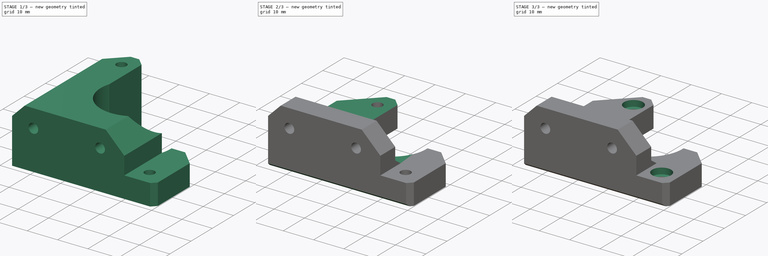
[diagram: build sequence overview — one tinted view per stage of 3, left to right]
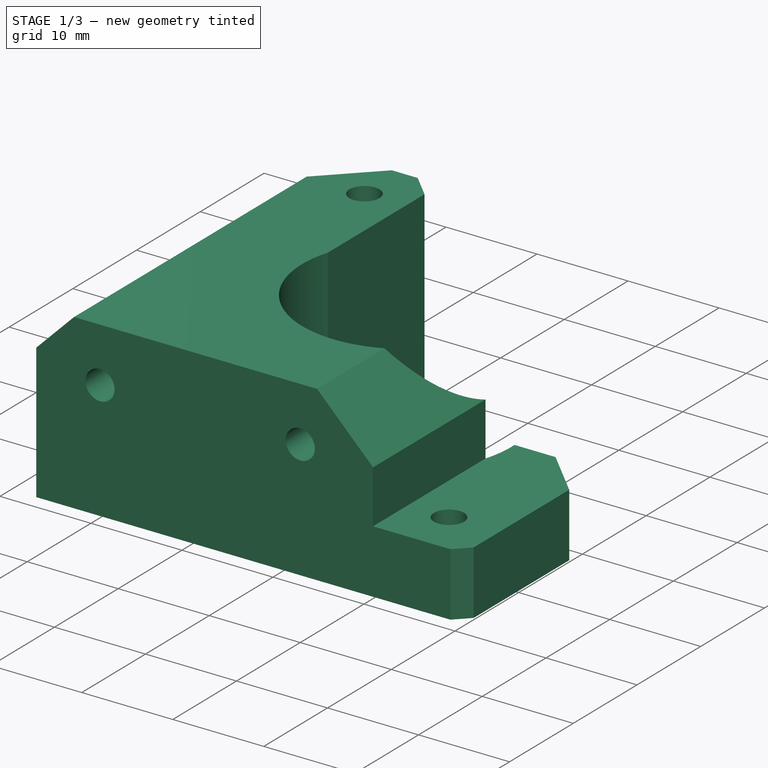
[diagram: stage 1 of 3 — iso view after this stage's code; geometry added in this stage tinted green]
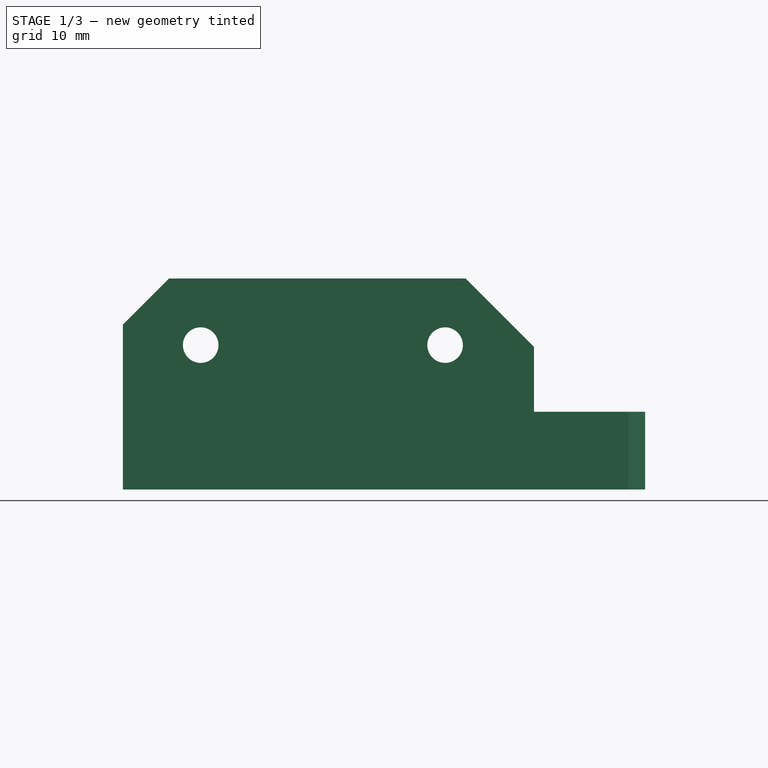
[diagram: stage 1 of 3 — front view after this stage's code; geometry added in this stage tinted green]
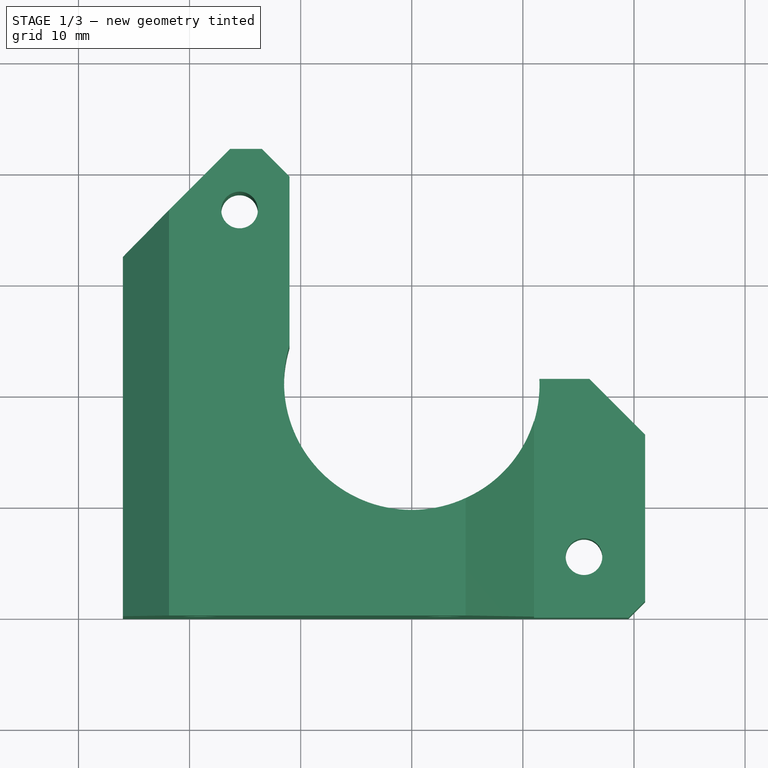
[diagram: stage 1 of 3 — top view after this stage's code; geometry added in this stage tinted green]
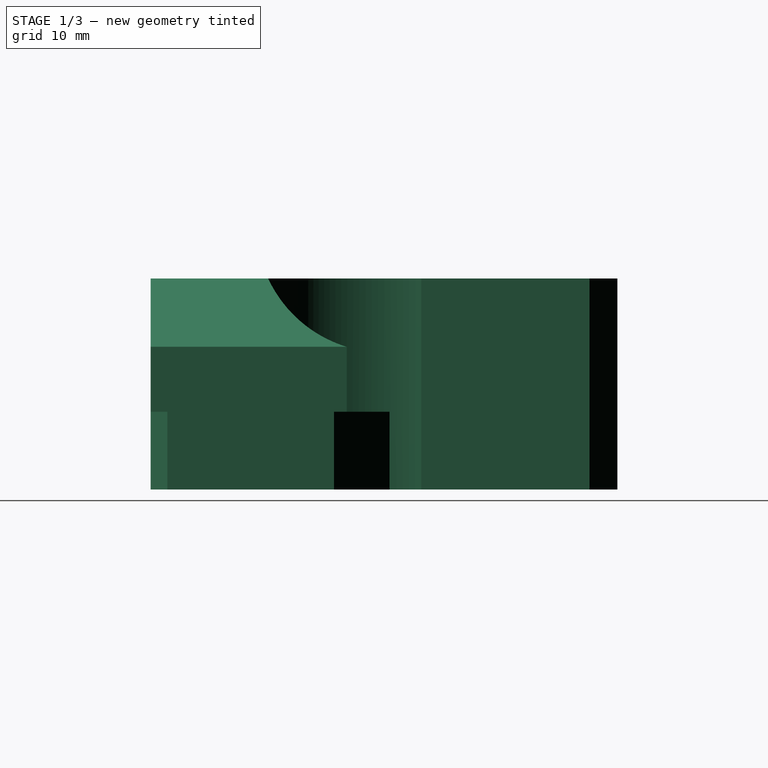
[diagram: stage 1 of 3 — right view after this stage's code; geometry added in this stage tinted green]
FCSTD DOCUMENT  (FreeCAD 0.22R38231 (Git))
Label: _Y-Motor-Holder
License: Creative Commons Attribution 4.0
LicenseURL: https://creativecommons.org/licenses/by/4.0/
objects: Sketcher::SketchObject×6, PartDesign::Pocket×5, PartDesign::Pad×1, PartDesign::Chamfer×1, PartDesign::Body×1
note: 28 computed .brp shape members not serialized (recipe doc carries the construction recipe); baked Part::Feature solids carry a one-line shape summary decoded from their .brp

FEATURE [Sketcher::SketchObject] Sketch
  AttachmentSupport = -> [XZ_Plane]
  FullyConstrained = true
  MapMode = 5
  Placement = pos=(0,0,0) rot=(1,0,0;1.5708rad)
  sketch-geometry (10):
    g0: LineSegment StartX=-26 StartY=-7 StartZ=0 EndX=21 EndY=-7 EndZ=0
    g1: LineSegment StartX=21 StartY=-7 StartZ=0 EndX=21 EndY=0 EndZ=0
    g2: LineSegment StartX=21 StartY=0 StartZ=0 EndX=11 EndY=0 EndZ=0
    g3: LineSegment StartX=11 StartY=0 StartZ=0 EndX=11 EndY=5.85 EndZ=0
    g4: LineSegment StartX=11 StartY=5.85 StartZ=0 EndX=4.85 EndY=12 EndZ=0
    g5: LineSegment StartX=4.85 StartY=12 StartZ=0 EndX=-21.85 EndY=12 EndZ=0
    g6: LineSegment StartX=-21.85 StartY=12 StartZ=0 EndX=-26 EndY=7.85 EndZ=0
    g7: LineSegment StartX=-26 StartY=7.85 StartZ=0 EndX=-26 EndY=-7 EndZ=0
    g8: Circle CenterX=-19 CenterY=6 CenterZ=0 NormalX=0 NormalY=0 NormalZ=1 AngleXU=0 Radius=1.6
    g9: Circle CenterX=3 CenterY=6 CenterZ=0 NormalX=0 NormalY=0 NormalZ=1 AngleXU=0 Radius=1.6
  constraints (30):
    c: Horizontal(g0)
    c: Coincident(g0,g1)
    c: PointOnObject(g1,g-1)
    c: Vertical(g1)
    c: Coincident(g1,g2)
    c: PointOnObject(g2,g-1)
    c: Coincident(g2,g3)
    c: Vertical(g3)
    c: Coincident(g3,g4)
    c: Coincident(g4,g5)
    c: Horizontal(g5)
    c: Coincident(g5,g6)
    c: Coincident(g6,g7)
    c: Coincident(g7,g0)
    c: Vertical(g7)
    c: DistanceY(g0,g-1) = 7
    c: DistanceX(g0,g-1) = 26
    c: DistanceX(g0,g0) = 47
    c: DistanceY(g0,g5) = 19
    c: Angle(g7,g6) = 2.35619
    c: DistanceY(g6,g5) = 4.15
    c: DistanceX(g6,g3) = 37
    c: Perpendicular(g4,g6)
    c: DistanceY(g3,g4) = 6.15
    c: Horizontal(g9,g8)
    c: DistanceX(g8,g9) = 22
    c: DistanceX(g-1,g9) = 3
    c: Equal(g8,g9)
    c: Diameter(g8) = 3.2
    c: DistanceY(g-1,g8) = 6
FEATURE [PartDesign::Pad] Pad
  Direction = (0,-1,2e-16)
  Length = 42
  Length2 = 10
  Placement = pos=(0,0,0) rot=(1,0,0;1.5708rad)
  Profile = -> Sketch
  ReferenceAxis = -> Sketch [N_Axis]
  Refine = true
  Reversed = true
  Suppressed = false
  Type = 0
FEATURE [Sketcher::SketchObject] Sketch001
  AttachmentSupport = -> [XY_Plane]
  FullyConstrained = true
  MapMode = 5
  sketch-geometry (15):
    g0: LineSegment StartX=-27 StartY=31.35 StartZ=0 EndX=-15.35 EndY=43 EndZ=0
    g1: LineSegment StartX=-15.35 StartY=43 StartZ=0 EndX=-14.5 EndY=43 EndZ=0
    g2: LineSegment StartX=-14.5 StartY=43 StartZ=0 EndX=-11 EndY=39.5 EndZ=0
    g3: LineSegment StartX=-11 StartY=39.5 StartZ=0 EndX=-11 EndY=24.3541 EndZ=0
    g4: LineSegment StartX=11.4891 StartY=21.5 StartZ=0 EndX=16 EndY=21.5 EndZ=0
    g5: LineSegment StartX=16 StartY=21.5 StartZ=0 EndX=22 EndY=15.5 EndZ=0
    g6: LineSegment StartX=22 StartY=15.5 StartZ=0 EndX=22 EndY=44 EndZ=0
    g7: LineSegment StartX=22 StartY=44 StartZ=0 EndX=-27 EndY=44 EndZ=0
    g8: LineSegment StartX=-27 StartY=44 StartZ=0 EndX=-27 EndY=31.35 EndZ=0
    g9: ArcOfCircle CenterX=0 CenterY=21 CenterZ=0 NormalX=0 NormalY=0 NormalZ=1 AngleXU=0 Radius=11.5 StartAngle=2.84563 EndAngle=6.32668
    g10: Circle CenterX=-15.5 CenterY=36.5 CenterZ=0 NormalX=0 NormalY=0 NormalZ=1 AngleXU=0 Radius=1.65
    g11: Circle CenterX=15.5 CenterY=5.5 CenterZ=0 NormalX=0 NormalY=0 NormalZ=1 AngleXU=0 Radius=1.65
    g12: LineSegment StartX=21.5 StartY=2 StartZ=0 EndX=19.5 EndY=0 EndZ=0
    g13: LineSegment StartX=19.5 StartY=0 StartZ=0 EndX=21.5 EndY=0 EndZ=0
    g14: LineSegment StartX=21.5 StartY=0 StartZ=0 EndX=21.5 EndY=2 EndZ=0
  constraints (46):
    c: Coincident(g0,g1)
    c: Horizontal(g1)
    c: Coincident(g1,g2)
    c: Coincident(g2,g3)
    c: Vertical(g3)
    c: Horizontal(g4)
    c: Coincident(g4,g5)
    c: Coincident(g5,g6)
    c: Vertical(g6)
    c: Coincident(g6,g7)
    c: Horizontal(g7)
    c: Coincident(g7,g8)
    c: Coincident(g8,g0)
    c: Vertical(g8)
    c: Coincident(g9,g3)
    c: Coincident(g9,g4)
    c: PointOnObject(g9,g-2)
    c: DistanceY(g-1,g9) = 21
    c: Radius(g9) = 11.5
    c: DistanceX(g-1,g6) = 22
    c: DistanceY(g-1,g6) = 44
    c: DistanceX(g7,g7) = 49
    c: Angle(g0,g8) = 0.785398
    c: DistanceY(g8,g8) = 12.65
    c: Perpendicular(g2,g0)
    c: DistanceX(g2,g-1) = 11
    c: DistanceY(g0,g2) = 8.15
    c: DistanceY(g2,g1) = 3.5
    c: Parallel(g2,g5)
    c: DistanceY(g-1,g4) = 21.5
    c: DistanceY(g5,g4) = 6
    c: DistanceY(g11,g10) = 31
    c: DistanceX(g10,g11) = 31
    c: DistanceX(g-1,g11) = 15.5
    c: DistanceY(g9,g10) = 15.5
    c: Equal(g10,g11)
    c: Diameter(g10) = 3.3
    c: PointOnObject(g12,g-1)
    c: Coincident(g12,g13)
    c: PointOnObject(g13,g-1)
    c: Coincident(g13,g14)
    c: Coincident(g14,g12)
    c: Vertical(g14)
    c: Angle(g13,g12) = 0.785398
    c: DistanceX(g-1,g12) = 19.5
    c: DistanceY(g14,g14) = 2
FEATURE [PartDesign::Pocket] Pocket
  BaseFeature = -> Pad
  Direction = (0,0,-1)
  Length = 5
  Length2 = 5
  Midplane = true
  Placement = pos=(0,0,0) rot=(1,0,0;1.5708rad)
  Profile = -> Sketch001
  ReferenceAxis = -> Sketch001 [N_Axis]
  Refine = true
  Suppressed = false
  Type = 1
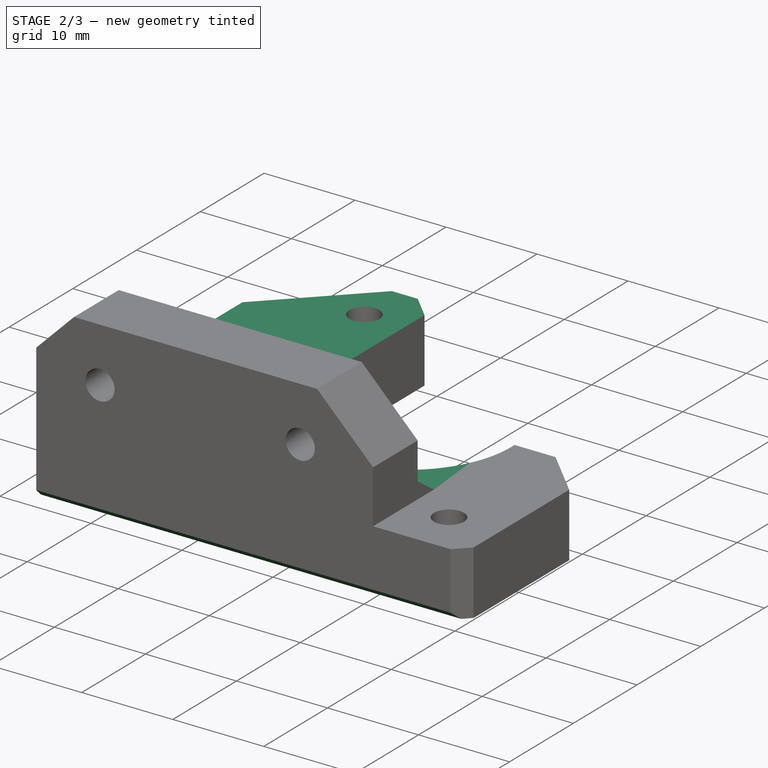
[diagram: stage 2 of 3 — iso view after this stage's code; geometry added in this stage tinted green]
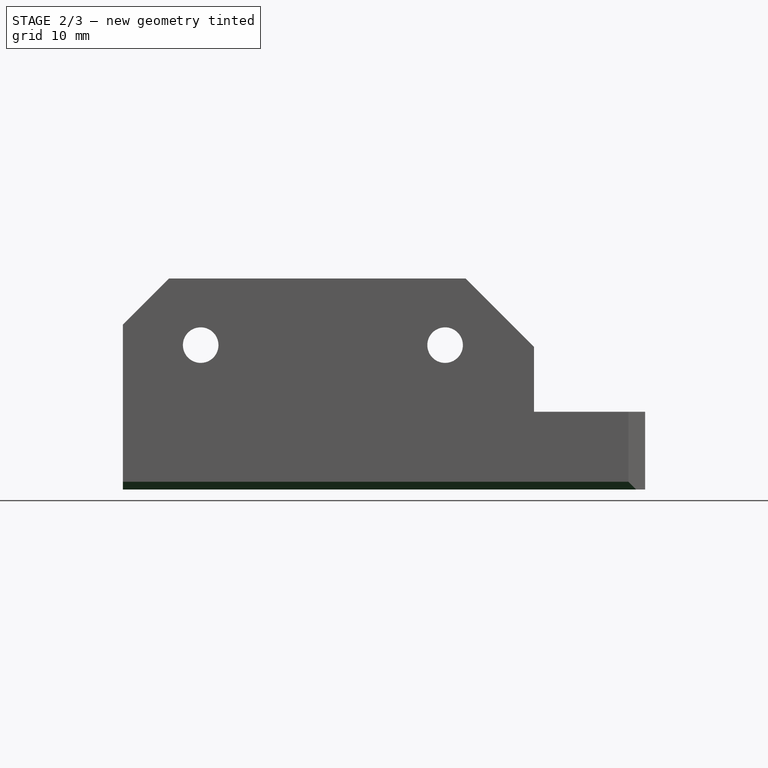
[diagram: stage 2 of 3 — front view after this stage's code; geometry added in this stage tinted green]
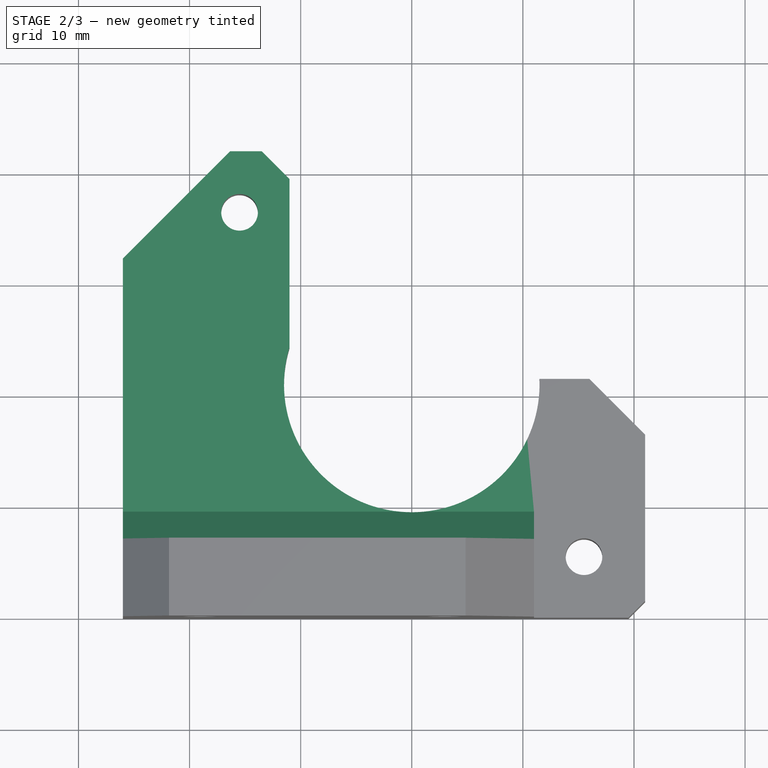
[diagram: stage 2 of 3 — top view after this stage's code; geometry added in this stage tinted green]
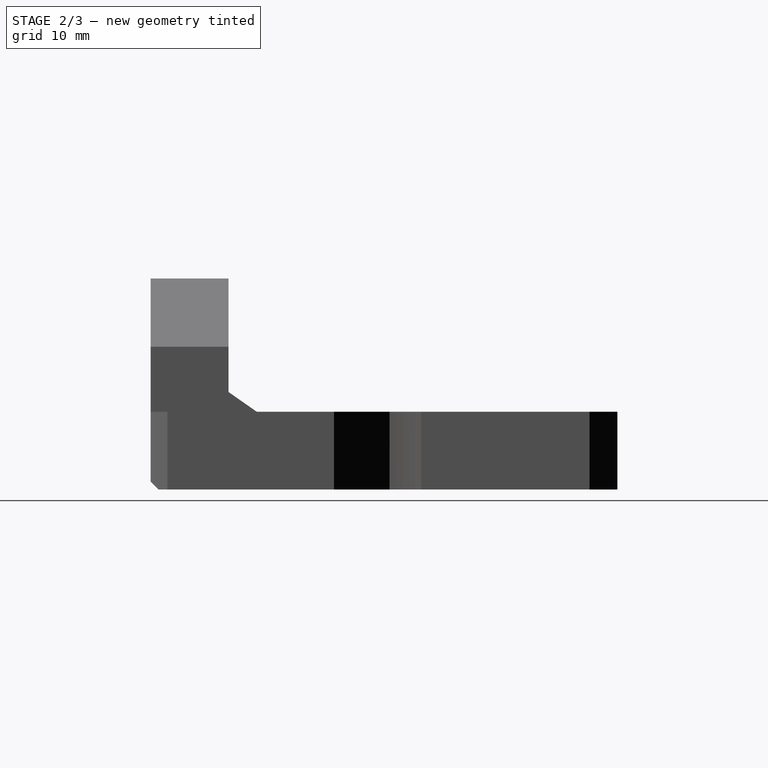
[diagram: stage 2 of 3 — right view after this stage's code; geometry added in this stage tinted green]
FEATURE [Sketcher::SketchObject] Sketch002
  AttachmentSupport = -> [YZ_Plane]
  FullyConstrained = true
  MapMode = 5
  Placement = pos=(0,0,0) rot=(0.57735,0.57735,0.57735;2.0944rad)
  sketch-geometry (8):
    g0: LineSegment StartX=7 StartY=13 StartZ=0 EndX=7 EndY=1.78553 EndZ=0
    g1: LineSegment StartX=7 StartY=1.78553 StartZ=0 EndX=9.55 EndY=-2e-16 EndZ=0
    g2: LineSegment StartX=9.55 StartY=-2e-16 StartZ=0 EndX=43 EndY=0 EndZ=0
    g3: LineSegment StartX=43 StartY=0 StartZ=0 EndX=43 EndY=13 EndZ=0
    g4: LineSegment StartX=43 StartY=13 StartZ=0 EndX=7 EndY=13 EndZ=0
    g5: LineSegment StartX=0 StartY=-7.3 StartZ=0 EndX=1 EndY=-7.3 EndZ=0
    g6: LineSegment StartX=1 StartY=-7.3 StartZ=0 EndX=0 EndY=-6.3 EndZ=0
    g7: LineSegment StartX=0 StartY=-6.3 StartZ=0 EndX=0 EndY=-7.3 EndZ=0
  constraints (24):
    c: Vertical(g0)
    c: Coincident(g0,g1)
    c: PointOnObject(g1,g-1)
    c: Coincident(g1,g2)
    c: PointOnObject(g2,g-1)
    c: Coincident(g2,g3)
    c: Vertical(g3)
    c: Coincident(g3,g4)
    c: Coincident(g4,g0)
    c: Horizontal(g4)
    c: Angle(g1,g-1) = 0.610865
    c: DistanceX(g0,g1) = 2.55
    c: DistanceX(g-1,g0) = 7
    c: DistanceY(g3,g3) = 13
    c: DistanceX(g4,g4) = 36
    c: PointOnObject(g5,g-2)
    c: Horizontal(g5)
    c: Coincident(g5,g6)
    c: PointOnObject(g6,g-2)
    c: Coincident(g6,g7)
    c: Coincident(g7,g5)
    c: Angle(g7,g6) = 0.785398
    c: DistanceY(g6,g-1) = 6.3
    c: DistanceY(g7,g7) = 1
FEATURE [PartDesign::Pocket] Pocket001
  BaseFeature = -> Pocket
  Direction = (-1,0,0)
  Length = 5
  Length2 = 5
  Midplane = true
  Placement = pos=(0,0,0) rot=(1,0,0;1.5708rad)
  Profile = -> Sketch002
  ReferenceAxis = -> Sketch002 [N_Axis]
  Refine = true
  Suppressed = false
  Type = 1
FEATURE [Sketcher::SketchObject] Sketch003
  AttachmentSupport = -> [Pocket001]
  FullyConstrained = true
  MapMode = 5
  Placement = pos=(0,7,0) rot=(-1,0,0;1.5708rad)
  sketch-geometry (14):
    g0: LineSegment StartX=-16.315 StartY=-4.44981 StartZ=0 EndX=-19 EndY=-2.89963 EndZ=0
    g1: LineSegment StartX=-19 StartY=-2.89963 StartZ=0 EndX=-21.685 EndY=-4.44981 EndZ=0
    g2: LineSegment StartX=-21.685 StartY=-4.44981 StartZ=0 EndX=-21.685 EndY=-7.55019 EndZ=0
    g3: LineSegment StartX=-21.685 StartY=-7.55019 StartZ=0 EndX=-19 EndY=-9.10037 EndZ=0
    g4: LineSegment StartX=-19 StartY=-9.10037 StartZ=0 EndX=-16.315 EndY=-7.55019 EndZ=0
    g5: LineSegment StartX=-16.315 StartY=-7.55019 StartZ=0 EndX=-16.315 EndY=-4.44981 EndZ=0
    g6: Circle CenterX=-19 CenterY=-6 CenterZ=0 NormalX=0 NormalY=0 NormalZ=1 AngleXU=0 Radius=3.10037
    g7: LineSegment StartX=5.685 StartY=-4.44981 StartZ=0 EndX=3 EndY=-2.89963 EndZ=0
    g8: LineSegment StartX=3 StartY=-2.89963 StartZ=0 EndX=0.315 EndY=-4.44981 EndZ=0
    g9: LineSegment StartX=0.315 StartY=-4.44981 StartZ=0 EndX=0.315 EndY=-7.55019 EndZ=0
    g10: LineSegment StartX=0.315 StartY=-7.55019 StartZ=0 EndX=3 EndY=-9.10037 EndZ=0
    g11: LineSegment StartX=3 StartY=-9.10037 StartZ=0 EndX=5.685 EndY=-7.55019 EndZ=0
    g12: LineSegment StartX=5.685 StartY=-7.55019 StartZ=0 EndX=5.685 EndY=-4.44981 EndZ=0
    g13: Circle CenterX=3 CenterY=-6 CenterZ=0 NormalX=0 NormalY=0 NormalZ=1 AngleXU=0 Radius=3.10037
  constraints (34):
    c: Coincident(g0,g1)
    c: Coincident(g1,g2)
    c: Coincident(g2,g3)
    c: Coincident(g3,g4)
    c: Coincident(g4,g5)
    c: Coincident(g5,g0)
    c: Equal(g0, g1-g5) x5
    c: PointOnObject(g0,g6)
    c: PointOnObject(g1,g6)
    c: PointOnObject(g2,g6)
    c: PointOnObject(g3,g6)
    c: PointOnObject(g4,g6)
    c: PointOnObject(g5,g6)
    c: Coincident(g7,g8)
    c: Coincident(g8,g9)
    c: Coincident(g9,g10)
    c: Coincident(g10,g11)
    c: Coincident(g11,g12)
    c: Coincident(g12,g7)
    c: Equal(g7, g8-g12) x5
    c: PointOnObject(g7,g13)
    c: PointOnObject(g8,g13)
    c: PointOnObject(g9,g13)
    c: PointOnObject(g10,g13)
    c: PointOnObject(g11,g13)
    c: PointOnObject(g12,g13)
    c: Equal(g6,g13)
    c: Vertical(g5)
    c: Vertical(g9)
    c: DistanceX(g6,g13) = 22
    c: DistanceX(g-1,g13) = 3
    c: Horizontal(g13,g6)
    c: DistanceY(g13,g-1) = 6
    c: DistanceX(g1,g0) = 5.37
FEATURE [PartDesign::Pocket] Pocket002
  BaseFeature = -> Pocket001
  Direction = (0,-1,-2e-16)
  Length = 3.5
  Length2 = 5
  Placement = pos=(0,0,0) rot=(1,0,0;1.5708rad)
  Profile = -> Sketch003
  ReferenceAxis = -> Sketch003 [N_Axis]
  Refine = true
  Suppressed = false
  Type = 0
FEATURE [PartDesign::Chamfer] Chamfer
  Angle = 69.184
  Base = -> Pocket002 [Edge64,Edge69,Edge68,Edge67,Edge66,Edge65,Edge72,Edge71,Edge70,Edge75,Edge74,Edge73]
  BaseFeature = -> Pocket002
  ChamferType = 2
  FlipDirection = false
  Placement = pos=(0,0,0) rot=(1,0,0;1.5708rad)
  Refine = true
  Size = 0.35
  Size2 = 1
  SupportTransform = false
  Suppressed = false
  UseAllEdges = false
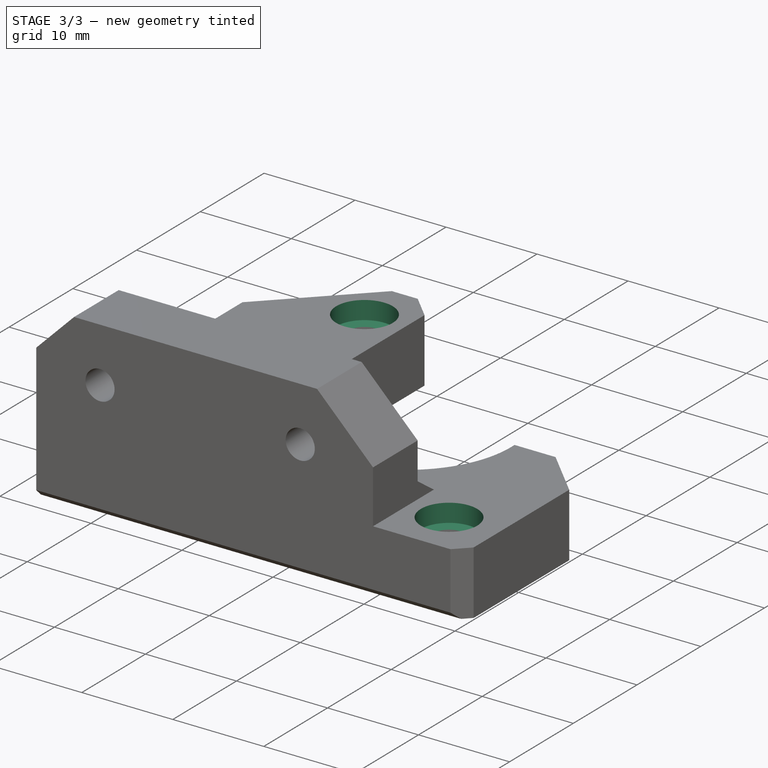
[diagram: stage 3 of 3 — iso view after this stage's code; geometry added in this stage tinted green]
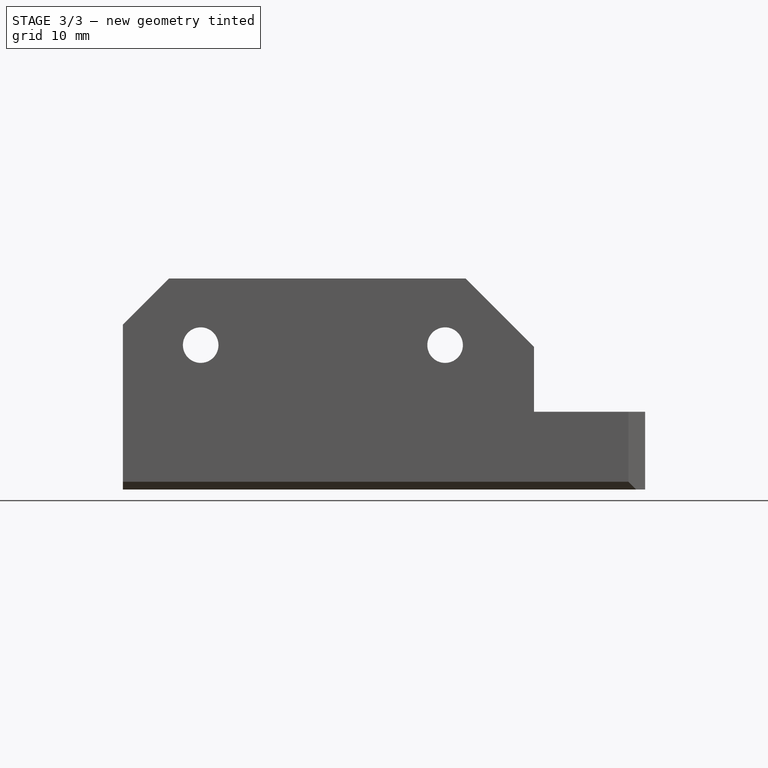
[diagram: stage 3 of 3 — front view after this stage's code; geometry added in this stage tinted green]
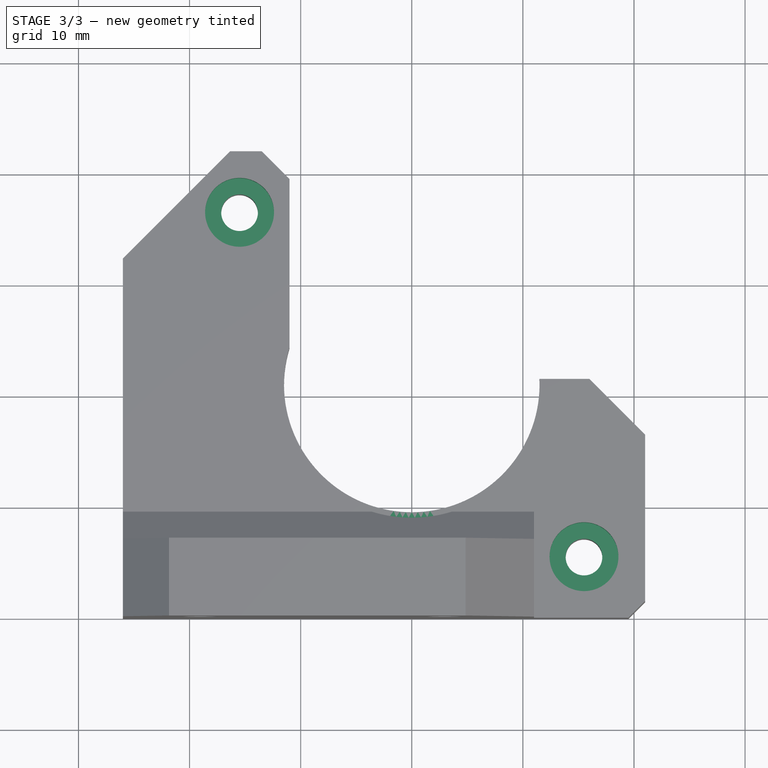
[diagram: stage 3 of 3 — top view after this stage's code; geometry added in this stage tinted green]
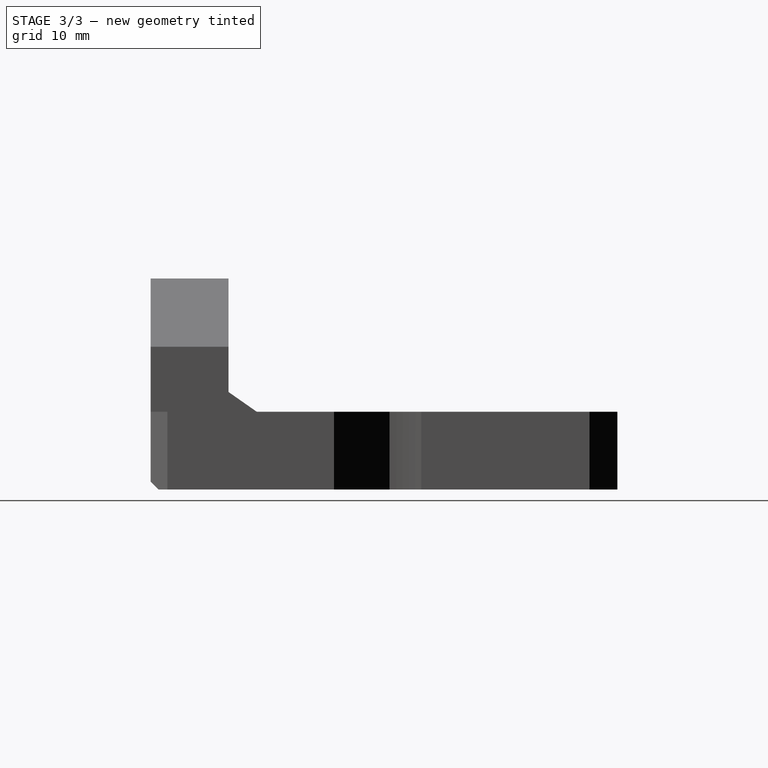
[diagram: stage 3 of 3 — right view after this stage's code; geometry added in this stage tinted green]
FEATURE [Sketcher::SketchObject] Sketch004
  AttachmentSupport = -> [Chamfer]
  FullyConstrained = true
  MapMode = 5
  Placement = pos=(0,0,-3e-16) rot=(0,0,1;3.14159rad)
  sketch-geometry (2):
    g0: Circle CenterX=-15.5 CenterY=-5.5 CenterZ=0 NormalX=0 NormalY=0 NormalZ=1 AngleXU=0 Radius=3.1
    g1: Circle CenterX=15.5 CenterY=-36.5 CenterZ=0 NormalX=0 NormalY=0 NormalZ=1 AngleXU=0 Radius=3.1
  constraints (6):
    c: DistanceX(g0,g1) = 31
    c: DistanceY(g1,g0) = 31
    c: DistanceX(g-1,g1) = 15.5
    c: DistanceY(g0,g-1) = 5.5
    c: Diameter(g0) = 6.2
    c: Equal(g0,g1)
FEATURE [PartDesign::Pocket] Pocket003
  BaseFeature = -> Chamfer
  Direction = (0,0,-1)
  Length = 2
  Length2 = 5
  Placement = pos=(0,0,0) rot=(1,0,0;1.5708rad)
  Profile = -> Sketch004
  ReferenceAxis = -> Sketch004 [N_Axis]
  Refine = true
  Suppressed = false
  Type = 0
FEATURE [Sketcher::SketchObject] Sketch005
  AttachmentSupport = -> [XY_Plane]
  FullyConstrained = true
  MapMode = 5
  sketch-geometry (1):
    g0: Circle CenterX=0 CenterY=21 CenterZ=0 NormalX=0 NormalY=0 NormalZ=1 AngleXU=0 Radius=12
  constraints (3):
    c: PointOnObject(g0,g-2)
    c: DistanceY(g-1,g0) = 21
    c: Diameter(g0) = 24
FEATURE [PartDesign::Pocket] Pocket004
  BaseFeature = -> Pocket003
  Direction = (0,0,-1)
  Length = 5
  Length2 = 5
  Placement = pos=(0,0,0) rot=(1,0,0;1.5708rad)
  Profile = -> Sketch005
  ReferenceAxis = -> Sketch005 [N_Axis]
  Refine = true
  Reversed = true
  Suppressed = false
  Type = 1
FEATURE [PartDesign::Body] Body  label="Y-Motor-Holder"
  AllowCompound = false
  Group = -> [Sketch,Pad,Sketch001,Pocket,Sketch002,Pocket001,Sketch003,Pocket002,Chamfer,Sketch004,Pocket003,Sketch005,Pocket004]
  Origin = -> Origin
  Tip = -> Pocket004
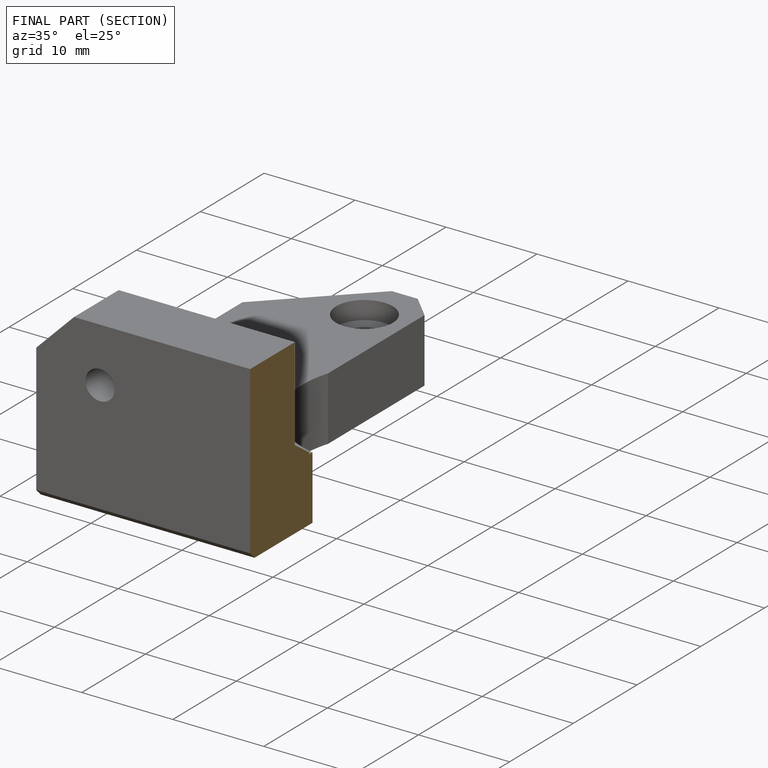
[diagram: finished part — half-section view (interior)]
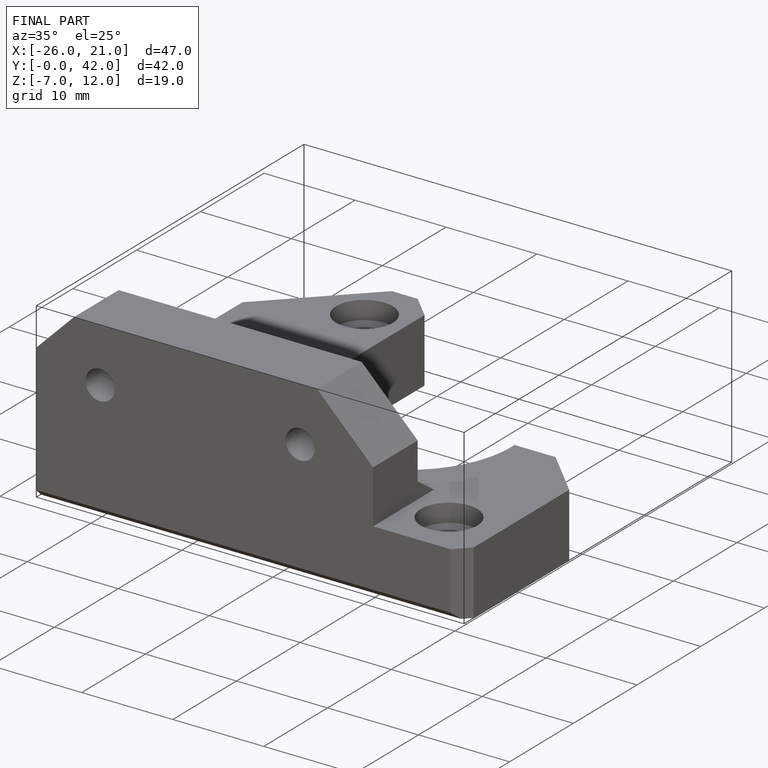
[diagram: finished part — iso view with bounding-box wireframe]
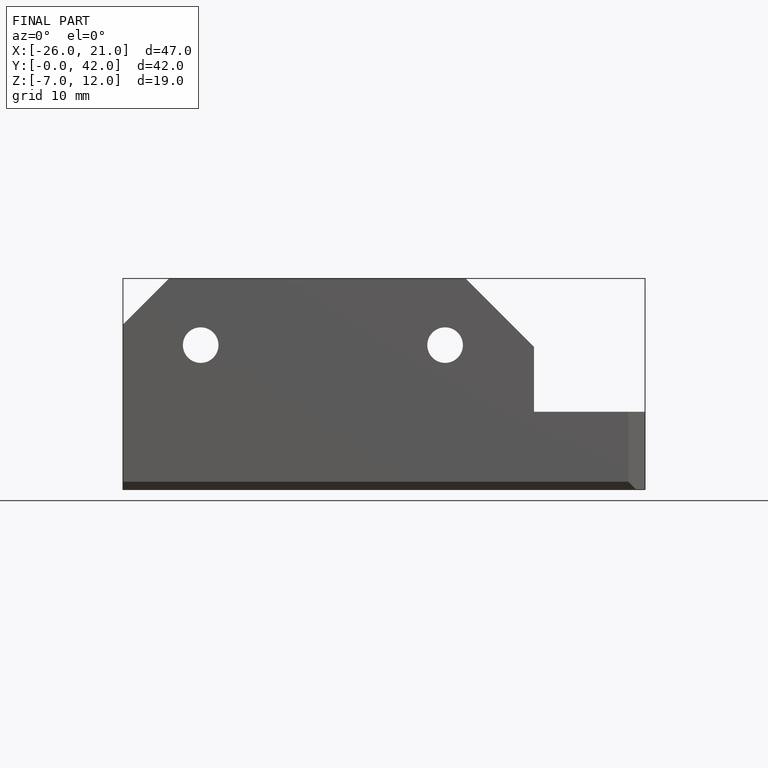
[diagram: finished part — front view with bounding-box wireframe]
